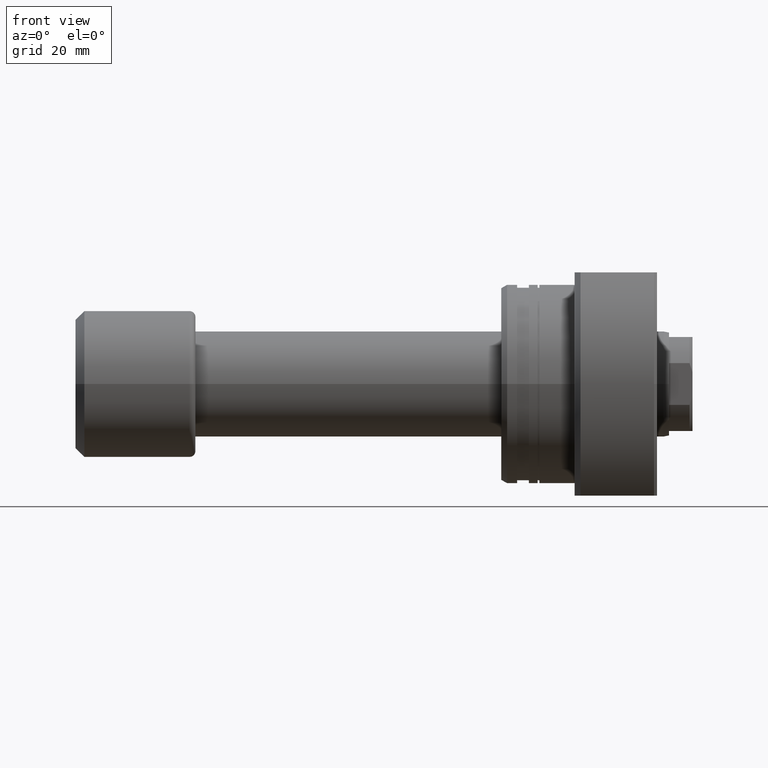
[diagram: clean part render]
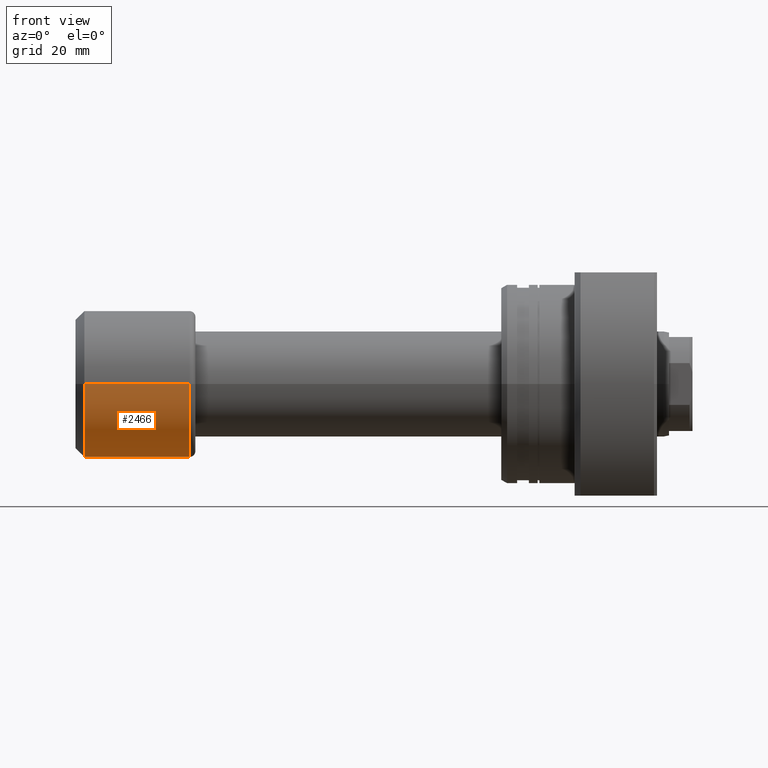
[diagram: same view with one face highlighted and labeled with its STEP entity id]
A machine part, front view. The second image highlights one B-rep face of the part: STEP entity #2466.
In plain terms, the highlighted cylindrical surface (partial cylindrical patch) has radius 12.5 mm, axis along (-1, -0, -0).
Its self-contained STEP definition (entity closure, byte-faithful):
#42 = DIRECTION ( 'NONE',  ( 0.000000000000000000, -1.000000000000000000, 0.000000000000000000 ) ) ;
#185 = FACE_OUTER_BOUND ( 'NONE', #670, .T. ) ;
#201 = LINE ( 'NONE', #2190, #2570 ) ;
#281 = CARTESIAN_POINT ( 'NONE',  ( 1.500000000000001332, 12.50000000000000000, 0.000000000000000000 ) ) ;
#426 = DIRECTION ( 'NONE',  ( -1.000000000000000000, -1.069542322069065801E-17, -0.000000000000000000 ) ) ;
#484 = ORIENTED_EDGE ( 'NONE', *, *, #2953, .F. ) ;
#554 = CARTESIAN_POINT ( 'NONE',  ( 19.39999999999999503, 2.074912104813986935E-16, 0.000000000000000000 ) ) ;
#670 = EDGE_LOOP ( 'NONE', ( #1873, #1403, #2177, #484 ) ) ;
#705 = AXIS2_PLACEMENT_3D ( 'NONE', #2877, #2074, #1320 ) ;
#822 = LINE ( 'NONE', #2820, #952 ) ;
#952 = VECTOR ( 'NONE', #1837, 1000.000000000000000 ) ;
#969 = AXIS2_PLACEMENT_3D ( 'NONE', #554, #1552, #42 ) ;
#1099 = DIRECTION ( 'NONE',  ( 1.069542322069065955E-17, -1.000000000000000000, 0.000000000000000000 ) ) ;
#1183 = CARTESIAN_POINT ( 'NONE',  ( 19.39999999999999503, 12.50000000000000000, 1.530808498934191521E-15 ) ) ;
#1320 = DIRECTION ( 'NONE',  ( 1.734723475976807094E-17, -1.000000000000000000, 0.000000000000000000 ) ) ;
#1337 = CARTESIAN_POINT ( 'NONE',  ( 0.000000000000000000, 0.000000000000000000, 0.000000000000000000 ) ) ;
#1403 = ORIENTED_EDGE ( 'NONE', *, *, #2851, .T. ) ;
#1407 = VERTEX_POINT ( 'NONE', #2500 ) ;
#1486 = EDGE_CURVE ( 'NONE', #1774, #1930, #822, .T. ) ;
#1552 = DIRECTION ( 'NONE',  ( -1.000000000000000000, -1.069542322069065801E-17, -0.000000000000000000 ) ) ;
#1588 = CIRCLE ( 'NONE', #969, 12.50000000000000000 ) ;
#1746 = AXIS2_PLACEMENT_3D ( 'NONE', #1337, #426, #1099 ) ;
#1774 = VERTEX_POINT ( 'NONE', #1183 ) ;
#1788 = EDGE_CURVE ( 'NONE', #1407, #1830, #201, .T. ) ;
#1830 = VERTEX_POINT ( 'NONE', #3030 ) ;
#1837 = DIRECTION ( 'NONE',  ( -1.000000000000000000, -1.069542322069065801E-17, -0.000000000000000000 ) ) ;
#1873 = ORIENTED_EDGE ( 'NONE', *, *, #1486, .F. ) ;
#1930 = VERTEX_POINT ( 'NONE', #281 ) ;
#2074 = DIRECTION ( 'NONE',  ( -1.000000000000000000, -1.069542322069065801E-17, -0.000000000000000000 ) ) ;
#2177 = ORIENTED_EDGE ( 'NONE', *, *, #1788, .T. ) ;
#2190 = CARTESIAN_POINT ( 'NONE',  ( 1.336927902586332490E-16, -12.50000000000000000, 0.000000000000000000 ) ) ;
#2215 = CIRCLE ( 'NONE', #705, 12.50000000000000000 ) ;
#2466 = ADVANCED_FACE ( 'NONE', ( #185 ), #2571, .T. ) ;
#2500 = CARTESIAN_POINT ( 'NONE',  ( 19.39999999999999503, -12.50000000000000000, 0.000000000000000000 ) ) ;
#2570 = VECTOR ( 'NONE', #3191, 1000.000000000000000 ) ;
#2571 = CYLINDRICAL_SURFACE ( 'NONE', #1746, 12.50000000000000000 ) ;
#2820 = CARTESIAN_POINT ( 'NONE',  ( -1.336927902586332490E-16, 12.50000000000000000, 1.530808498934191521E-15 ) ) ;
#2851 = EDGE_CURVE ( 'NONE', #1774, #1407, #1588, .T. ) ;
#2877 = CARTESIAN_POINT ( 'NONE',  ( 1.500000000000001554, 1.604313483103600319E-17, 0.000000000000000000 ) ) ;
#2953 = EDGE_CURVE ( 'NONE', #1930, #1830, #2215, .T. ) ;
#3030 = CARTESIAN_POINT ( 'NONE',  ( 1.500000000000001776, -12.50000000000000000, 1.530808498934191521E-15 ) ) ;
#3191 = DIRECTION ( 'NONE',  ( -1.000000000000000000, -1.069542322069065801E-17, -0.000000000000000000 ) ) ;